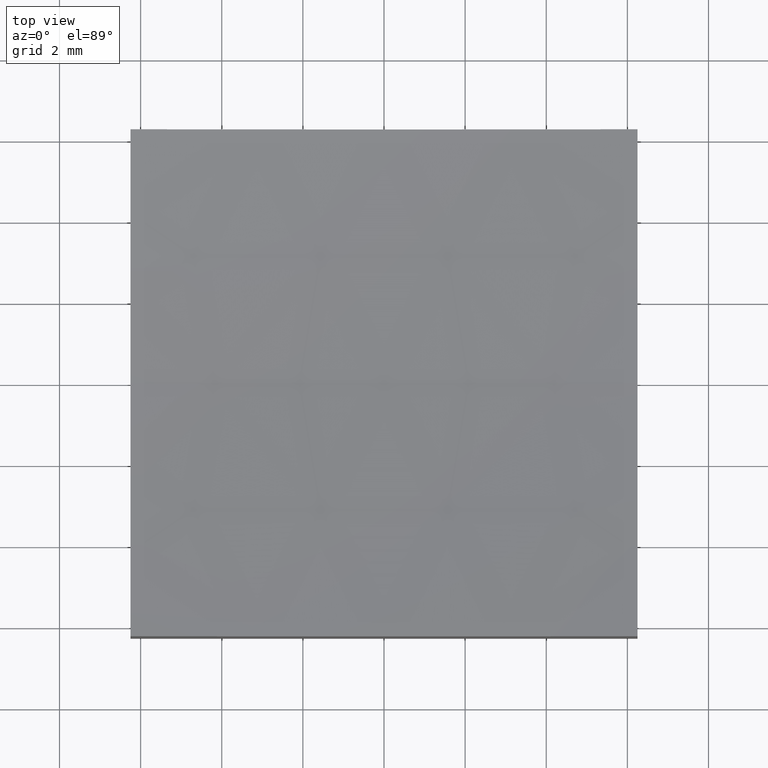
[diagram: clean part render]
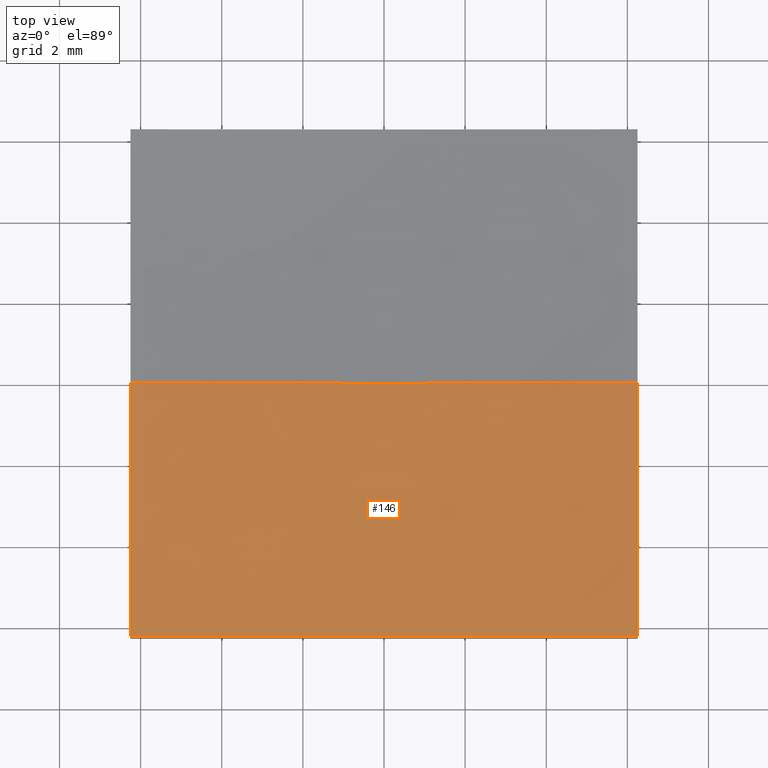
[diagram: same view with one face highlighted and labeled with its STEP entity id]
A machine part, top view. The second image highlights one B-rep face of the part: STEP entity #146.
In plain terms, the highlighted spherical surface has radius 70 mm.
Its self-contained STEP definition (entity closure, byte-faithful):
#4 = DIRECTION ( 'NONE',  ( -1.000000000000000000, 1.224646799147353207E-16, 0.0000000000000000000 ) ) ;
#6 = ORIENTED_EDGE ( 'NONE', *, *, #97, .T. ) ;
#14 = ORIENTED_EDGE ( 'NONE', *, *, #59, .F. ) ;
#15 = EDGE_CURVE ( 'NONE', #135, #52, #242, .T. ) ;
#16 = CIRCLE ( 'NONE', #48, 69.72042383692169665 ) ;
#26 = DIRECTION ( 'NONE',  ( 1.224646799147353207E-16, 1.000000000000000000, 3.905599837641398835E-33 ) ) ;
#32 = DIRECTION ( 'NONE',  ( 0.0000000000000000000, 0.0000000000000000000, -1.000000000000000000 ) ) ;
#34 = ORIENTED_EDGE ( 'NONE', *, *, #143, .T. ) ;
#40 = EDGE_CURVE ( 'NONE', #187, #222, #219, .T. ) ;
#43 = CARTESIAN_POINT ( 'NONE',  ( 8.939921633775681592E-15, -6.250000000000000888, 73.00000000000001421 ) ) ;
#45 = SPHERICAL_SURFACE ( 'NONE', #237, 70.00000000000000000 ) ;
#47 = CARTESIAN_POINT ( 'NONE',  ( 6.250000000000000000, -6.250000000000000888, 3.560277938344263760 ) ) ;
#48 = AXIS2_PLACEMENT_3D ( 'NONE', #92, #223, #32 ) ;
#52 = VERTEX_POINT ( 'NONE', #177 ) ;
#58 = CIRCLE ( 'NONE', #190, 69.72042383692169665 ) ;
#59 = EDGE_CURVE ( 'NONE', #222, #67, #58, .T. ) ;
#65 = AXIS2_PLACEMENT_3D ( 'NONE', #85, #26, #4 ) ;
#67 = VERTEX_POINT ( 'NONE', #120 ) ;
#71 = ORIENTED_EDGE ( 'NONE', *, *, #40, .F. ) ;
#72 = CARTESIAN_POINT ( 'NONE',  ( 1.545860043261271274E-14, 0.0000000000000000000, 3.000000000000002665 ) ) ;
#80 = AXIS2_PLACEMENT_3D ( 'NONE', #43, #83, #233 ) ;
#81 = DIRECTION ( 'NONE',  ( 0.0000000000000000000, 0.0000000000000000000, -1.000000000000000000 ) ) ;
#83 = DIRECTION ( 'NONE',  ( 0.0000000000000000000, 1.000000000000000000, 0.0000000000000000000 ) ) ;
#85 = CARTESIAN_POINT ( 'NONE',  ( 8.939921633775681592E-15, 0.0000000000000000000, 73.00000000000001421 ) ) ;
#92 = CARTESIAN_POINT ( 'NONE',  ( 6.250000000000000000, 0.0000000000000000000, 73.00000000000001421 ) ) ;
#97 = EDGE_CURVE ( 'NONE', #187, #52, #16, .T. ) ;
#120 = CARTESIAN_POINT ( 'NONE',  ( -6.250000000000000000, 7.654042494670971412E-16, 3.279576163078306905 ) ) ;
#127 = CARTESIAN_POINT ( 'NONE',  ( 8.939921633775681592E-15, 0.0000000000000000000, 73.00000000000001421 ) ) ;
#135 = VERTEX_POINT ( 'NONE', #72 ) ;
#139 = AXIS2_PLACEMENT_3D ( 'NONE', #181, #251, #81 ) ;
#140 = CARTESIAN_POINT ( 'NONE',  ( -6.250000000000000000, 0.0000000000000000000, 73.00000000000001421 ) ) ;
#143 = EDGE_CURVE ( 'NONE', #135, #67, #150, .T. ) ;
#145 = CARTESIAN_POINT ( 'NONE',  ( -6.250000000000000000, -6.250000000000000888, 3.560277938344263760 ) ) ;
#146 = ADVANCED_FACE ( 'NONE', ( #195 ), #45, .F. ) ;
#150 = CIRCLE ( 'NONE', #65, 70.00000000000000000 ) ;
#157 = EDGE_LOOP ( 'NONE', ( #246, #34, #14, #71, #6 ) ) ;
#177 = CARTESIAN_POINT ( 'NONE',  ( 6.250000000000000000, 0.0000000000000000000, 3.279576163078306905 ) ) ;
#181 = CARTESIAN_POINT ( 'NONE',  ( 8.939921633775681592E-15, 0.0000000000000000000, 73.00000000000001421 ) ) ;
#184 = DIRECTION ( 'NONE',  ( -0.0000000000000000000, 1.000000000000000000, 0.0000000000000000000 ) ) ;
#187 = VERTEX_POINT ( 'NONE', #47 ) ;
#190 = AXIS2_PLACEMENT_3D ( 'NONE', #140, #248, #191 ) ;
#191 = DIRECTION ( 'NONE',  ( 0.0000000000000000000, 0.0000000000000000000, -1.000000000000000000 ) ) ;
#195 = FACE_OUTER_BOUND ( 'NONE', #157, .T. ) ;
#219 = CIRCLE ( 'NONE', #80, 69.72042383692169665 ) ;
#222 = VERTEX_POINT ( 'NONE', #145 ) ;
#223 = DIRECTION ( 'NONE',  ( 1.000000000000000000, 0.0000000000000000000, -0.0000000000000000000 ) ) ;
#233 = DIRECTION ( 'NONE',  ( 0.0000000000000000000, 0.0000000000000000000, 1.000000000000000000 ) ) ;
#235 = DIRECTION ( 'NONE',  ( 1.000000000000000000, 0.0000000000000000000, 0.0000000000000000000 ) ) ;
#237 = AXIS2_PLACEMENT_3D ( 'NONE', #127, #184, #235 ) ;
#242 = CIRCLE ( 'NONE', #139, 70.00000000000000000 ) ;
#246 = ORIENTED_EDGE ( 'NONE', *, *, #15, .F. ) ;
#248 = DIRECTION ( 'NONE',  ( 1.000000000000000000, 0.0000000000000000000, -0.0000000000000000000 ) ) ;
#251 = DIRECTION ( 'NONE',  ( 0.0000000000000000000, -1.000000000000000000, 0.0000000000000000000 ) ) ;